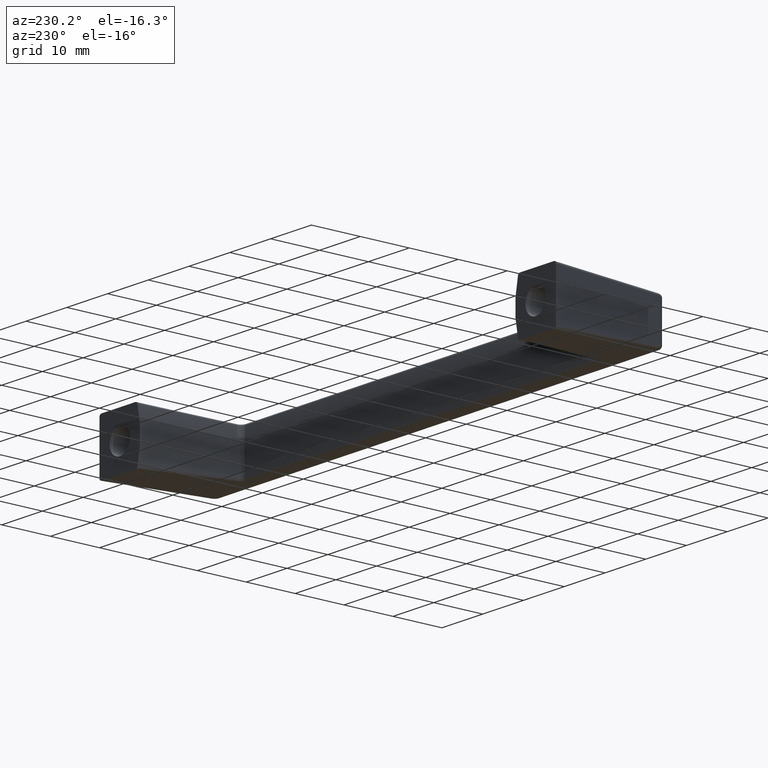
[diagram: clean part render]
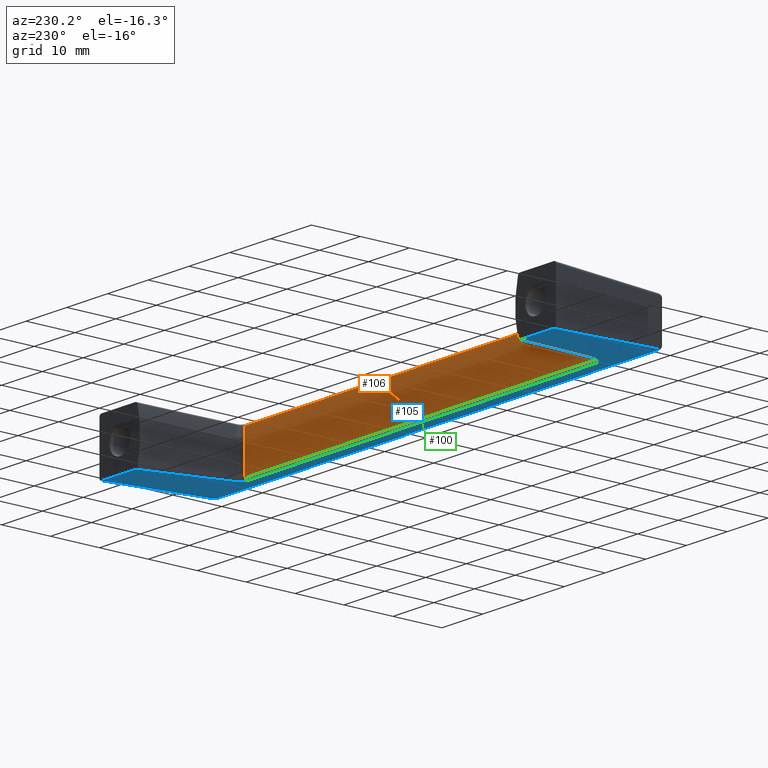
[diagram: same view with three faces highlighted in distinct colors, each labeled with its STEP entity id]
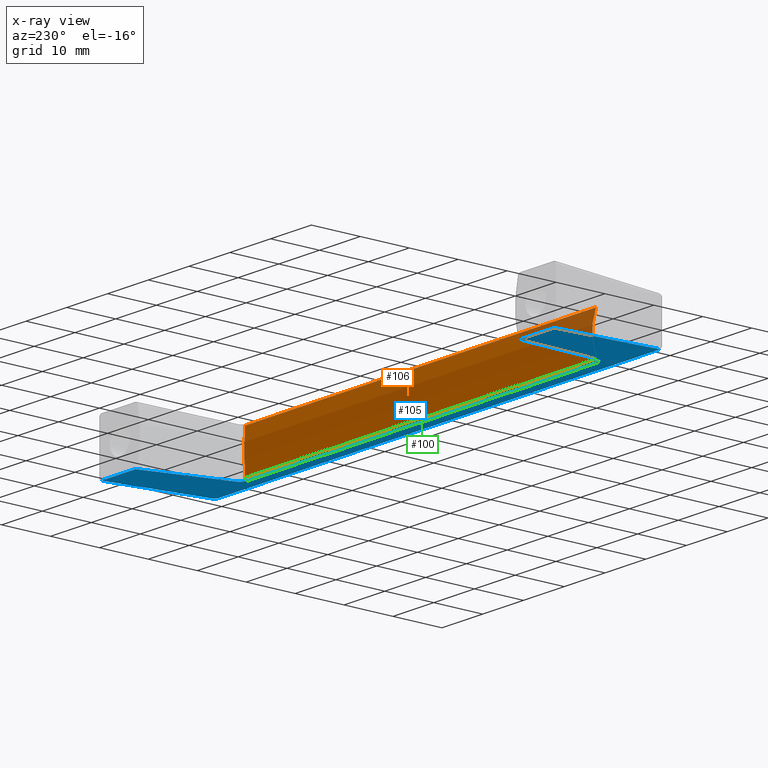
[diagram: x-ray of the same camera — body ghosted, the three highlighted faces saturated]
A machine part, auxiliary view with three faces highlighted in distinct colors.
The next image is the same camera in x-ray (body ghosted, the three faces saturated) — at least one of them is partly hidden behind the body in this view.
Their STEP definitions:

[orange] entity #106 — the highlighted cylindrical surface (partial cylindrical patch) has radius 20.0279 mm, axis along (-1, 0, -0).
#106=ADVANCED_FACE('',(#428),#427,.T.);
#427=CYLINDRICAL_SURFACE('',#857,2.00278571429E+001);
#428=FACE_OUTER_BOUND('',#858,.T.);
#854=CARTESIAN_POINT('',(-9.53223201208E+002,5.68434188608E-014,3.85281571429E+001));
#855=DIRECTION('',(-1.00000000000E+000,-0.00000000000E+000,-0.00000000000E+000));
#856=DIRECTION('',(-0.00000000000E+000,-0.00000000000E+000,1.00000000000E+000));
#857=AXIS2_PLACEMENT_3D('',#854,#855,#856);
#858=EDGE_LOOP('',(#1075,#1076,#1077,#1078));
#1075=ORIENTED_EDGE('',*,*,#1113,.T.);
#1076=ORIENTED_EDGE('',*,*,#1193,.T.);
#1077=ORIENTED_EDGE('',*,*,#1115,.T.);
#1078=ORIENTED_EDGE('',*,*,#1190,.T.);
#1113=EDGE_CURVE('',#1218,#1211,#1219,.T.);
#1115=EDGE_CURVE('',#1231,#1232,#1233,.T.);
#1190=EDGE_CURVE('',#1232,#1218,#1732,.T.);
#1193=EDGE_CURVE('',#1211,#1231,#1751,.T.);
#1211=VERTEX_POINT('',#1823);
#1218=VERTEX_POINT('',#1832);
#1219=(BOUNDED_CURVE() B_SPLINE_CURVE(3,(#1833,#1834,#1835,#1836,#1837,#1838,#1839,#1840,#1841,#1842),.UNSPECIFIED.,.F.,.F.) B_SPLINE_CURVE_WITH_KNOTS((4,2,2,2,4),(4.27086957905E-004,2.58483554688E-003,3.66370984137E-003,4.74258413586E-003,9.05808131382E-003),.UNSPECIFIED.) CURVE() GEOMETRIC_REPRESENTATION_ITEM() RATIONAL_B_SPLINE_CURVE((1.00000000000E+000,1.00000000000E+000,1.00000000000E+000,1.00000000000E+000,1.00000000000E+000,1.00000000000E+000,1.00000000000E+000,1.00000000000E+000,1.00000000000E+000,1.00000000000E+000)) REPRESENTATION_ITEM('') );
#1231=VERTEX_POINT('',#1851);
#1232=VERTEX_POINT('',#1852);
#1233=(BOUNDED_CURVE() B_SPLINE_CURVE(3,(#1853,#1854,#1855,#1856,#1857,#1858,#1859,#1860,#1861,#1862),.UNSPECIFIED.,.F.,.F.) B_SPLINE_CURVE_WITH_KNOTS((4,2,2,2,4),(4.27086957905E-004,2.58483554688E-003,3.66370984137E-003,4.74258413586E-003,9.05808131382E-003),.UNSPECIFIED.) CURVE() GEOMETRIC_REPRESENTATION_ITEM() RATIONAL_B_SPLINE_CURVE((1.00000000000E+000,1.00000000000E+000,1.00000000000E+000,1.00000000000E+000,1.00000000000E+000,1.00000000000E+000,1.00000000000E+000,1.00000000000E+000,1.00000000000E+000,1.00000000000E+000)) REPRESENTATION_ITEM('') );
#1732=LINE('',#2204,#2205);
#1751=LINE('',#2215,#2216);
#1823=CARTESIAN_POINT('',(-4.30464068542E+001,4.26052056911E+000,1.89587160110E+001));
#1832=CARTESIAN_POINT('',(-4.30464068542E+001,-4.26052056912E+000,1.89587160110E+001));
#1833=CARTESIAN_POINT('',(-4.30464068542E+001,-4.26052056912E+000,1.89587160110E+001));
#1834=CARTESIAN_POINT('',(-4.29077199323E+001,-3.56620773115E+000,1.88075551215E+001));
#1835=CARTESIAN_POINT('',(-4.28027005944E+001,-2.86319991053E+000,1.86930903945E+001));
#1836=CARTESIAN_POINT('',(-4.26968491528E+001,-1.79534203814E+000,1.85777188036E+001));
#1837=CARTESIAN_POINT('',(-4.26701964787E+001,-1.43716035297E+000,1.85486690455E+001));
#1838=CARTESIAN_POINT('',(-4.26345858571E+001,-7.16227185460E-001,1.85098556882E+001));
#1839=CARTESIAN_POINT('',(-4.26256597947E+001,-3.52074328459E-001,1.85001268417E+001));
#1840=CARTESIAN_POINT('',(-4.26264649561E+001,1.45687779295E+000,1.85010044171E+001));
#1841=CARTESIAN_POINT('',(-4.27693018029E+001,2.87324055771E+000,1.86566872006E+001));
#1842=CARTESIAN_POINT('',(-4.30464068542E+001,4.26052056911E+000,1.89587160110E+001));
#1851=CARTESIAN_POINT('',(4.30464068542E+001,4.26052056912E+000,1.89587160110E+001));
#1852=CARTESIAN_POINT('',(4.30464068542E+001,-4.26052056911E+000,1.89587160110E+001));
#1853=CARTESIAN_POINT('',(4.30464068542E+001,4.26052056912E+000,1.89587160110E+001));
#1854=CARTESIAN_POINT('',(4.29077199323E+001,3.56620773115E+000,1.88075551215E+001));
#1855=CARTESIAN_POINT('',(4.28027005944E+001,2.86319991053E+000,1.86930903945E+001));
#1856=CARTESIAN_POINT('',(4.26968491528E+001,1.79534203814E+000,1.85777188036E+001));
#1857=CARTESIAN_POINT('',(4.26701964787E+001,1.43716035297E+000,1.85486690455E+001));
#1858=CARTESIAN_POINT('',(4.26345858571E+001,7.16227185460E-001,1.85098556882E+001));
#1859=CARTESIAN_POINT('',(4.26256597947E+001,3.52074328460E-001,1.85001268417E+001));
#1860=CARTESIAN_POINT('',(4.26264649561E+001,-1.45687779295E+000,1.85010044171E+001));
#1861=CARTESIAN_POINT('',(4.27693018029E+001,-2.87324055771E+000,1.86566872006E+001));
#1862=CARTESIAN_POINT('',(4.30464068542E+001,-4.26052056911E+000,1.89587160110E+001));
#2204=CARTESIAN_POINT('',(4.30464068542E+001,-4.26052056911E+000,1.89587160110E+001));
#2205=VECTOR('',#2206,8.60928137083E+001);
#2206=DIRECTION('',(-1.00000000000E+000,0.00000000000E+000,0.00000000000E+000));
#2215=CARTESIAN_POINT('',(-4.30464068542E+001,4.26052056911E+000,1.89587160110E+001));
#2216=VECTOR('',#2217,8.60928137083E+001);
#2217=DIRECTION('',(1.00000000000E+000,0.00000000000E+000,0.00000000000E+000));

[blue] entity #105 — the highlighted planar face has unit normal (0, -0.0434, -0.9991).
#105=ADVANCED_FACE('',(#418),#417,.T.);
#417=PLANE('',#852);
#418=FACE_OUTER_BOUND('',#853,.T.);
#849=CARTESIAN_POINT('',(-6.55002717409E+001,-4.42306583607E+000,2.47742159205E+001));
#850=DIRECTION('',(0.00000000000E+000,-9.99056518227E-001,4.34289464349E-002));
#851=DIRECTION('',(0.00000000000E+000,-4.34289464349E-002,-9.99056518227E-001));
#852=AXIS2_PLACEMENT_3D('',#849,#850,#851);
#853=EDGE_LOOP('',(#1063,#1064,#1065,#1066,#1067,#1068,#1069,#1070,#1071,#1072,#1073,#1074));
#1063=ORIENTED_EDGE('',*,*,#1196,.T.);
#1064=ORIENTED_EDGE('',*,*,#1123,.T.);
#1065=ORIENTED_EDGE('',*,*,#1148,.F.);
#1066=ORIENTED_EDGE('',*,*,#1171,.T.);
#1067=ORIENTED_EDGE('',*,*,#1173,.T.);
#1068=ORIENTED_EDGE('',*,*,#1197,.T.);
#1069=ORIENTED_EDGE('',*,*,#1176,.T.);
#1070=ORIENTED_EDGE('',*,*,#1179,.T.);
#1071=ORIENTED_EDGE('',*,*,#1157,.F.);
#1072=ORIENTED_EDGE('',*,*,#1169,.T.);
#1073=ORIENTED_EDGE('',*,*,#1167,.T.);
#1074=ORIENTED_EDGE('',*,*,#1192,.T.);
#1123=EDGE_CURVE('',#1286,#1279,#1287,.T.);
#1148=EDGE_CURVE('',#1448,#1279,#1455,.T.);
#1157=EDGE_CURVE('',#1510,#1517,#1518,.T.);
#1167=EDGE_CURVE('',#1570,#1577,#1584,.T.);
#1169=EDGE_CURVE('',#1510,#1570,#1596,.T.);
#1171=EDGE_CURVE('',#1448,#1602,#1609,.T.);
#1173=EDGE_CURVE('',#1602,#1616,#1623,.T.);
#1176=EDGE_CURVE('',#1642,#1635,#1643,.T.);
#1179=EDGE_CURVE('',#1635,#1517,#1662,.T.);
#1192=EDGE_CURVE('',#1577,#1738,#1745,.T.);
#1196=EDGE_CURVE('',#1738,#1286,#1769,.T.);
#1197=EDGE_CURVE('',#1616,#1642,#1775,.T.);
#1279=VERTEX_POINT('',#1902);
#1286=VERTEX_POINT('',#1909);
#1287=(BOUNDED_CURVE() B_SPLINE_CURVE(2,(#1910,#1911,#1912),.UNSPECIFIED.,.F.,.F.) B_SPLINE_CURVE_WITH_KNOTS((3,3),(-1.35941033584E+000,-1.31769366303E+000),.UNSPECIFIED.) CURVE() GEOMETRIC_REPRESENTATION_ITEM() RATIONAL_B_SPLINE_CURVE((1.00000000000E+000,9.99782472788E-001,1.00000000000E+000)) REPRESENTATION_ITEM('') );
#1448=VERTEX_POINT('',#2023);
#1455=LINE('',#2027,#2028);
#1510=VERTEX_POINT('',#2060);
#1517=VERTEX_POINT('',#2067);
#1518=LINE('',#2068,#2069);
#1570=VERTEX_POINT('',#2098);
#1577=VERTEX_POINT('',#2103);
#1584=(BOUNDED_CURVE() B_SPLINE_CURVE(3,(#2108,#2109,#2110,#2111,#2112,#2113,#2114,#2115,#2116,#2117),.UNSPECIFIED.,.F.,.F.) B_SPLINE_CURVE_WITH_KNOTS((4,2,2,2,4),(0.00000000000E+000,5.30782279745E-004,1.06156455949E-003,1.59234683924E-003,2.12312911898E-003),.UNSPECIFIED.) CURVE() GEOMETRIC_REPRESENTATION_ITEM() RATIONAL_B_SPLINE_CURVE((1.00000000000E+000,1.00000000000E+000,1.00000000000E+000,1.00000000000E+000,1.00000000000E+000,1.00000000000E+000,1.00000000000E+000,1.00000000000E+000,1.00000000000E+000,1.00000000000E+000)) REPRESENTATION_ITEM('') );
#1596=(BOUNDED_CURVE() B_SPLINE_CURVE(2,(#2121,#2122,#2123),.UNSPECIFIED.,.F.,.F.) B_SPLINE_CURVE_WITH_KNOTS((3,3),(1.31769366303E+000,1.35941033584E+000),.UNSPECIFIED.) CURVE() GEOMETRIC_REPRESENTATION_ITEM() RATIONAL_B_SPLINE_CURVE((1.00000000000E+000,9.99782472788E-001,1.00000000000E+000)) REPRESENTATION_ITEM('') );
#1602=VERTEX_POINT('',#2124);
#1609=LINE('',#2129,#2130);
#1616=VERTEX_POINT('',#2133);
#1623=(BOUNDED_CURVE() B_SPLINE_CURVE(2,(#2138,#2139,#2140),.UNSPECIFIED.,.F.,.F.) B_SPLINE_CURVE_WITH_KNOTS((3,3),(1.61422891344E+000,3.14159265359E+000),.UNSPECIFIED.) CURVE() GEOMETRIC_REPRESENTATION_ITEM() RATIONAL_B_SPLINE_CURVE((1.00000000000E+000,7.22294584225E-001,1.00000000000E+000)) REPRESENTATION_ITEM('') );
#1635=VERTEX_POINT('',#2144);
#1642=VERTEX_POINT('',#2149);
#1643=(BOUNDED_CURVE() B_SPLINE_CURVE(2,(#2150,#2151,#2152),.UNSPECIFIED.,.F.,.F.) B_SPLINE_CURVE_WITH_KNOTS((3,3),(-3.14159265359E+000,-1.61422891344E+000),.UNSPECIFIED.) CURVE() GEOMETRIC_REPRESENTATION_ITEM() RATIONAL_B_SPLINE_CURVE((1.00000000000E+000,7.22294584225E-001,1.00000000000E+000)) REPRESENTATION_ITEM('') );
#1662=LINE('',#2161,#2162);
#1738=VERTEX_POINT('',#2207);
#1745=LINE('',#2212,#2213);
#1769=(BOUNDED_CURVE() B_SPLINE_CURVE(3,(#2225,#2226,#2227,#2228,#2229,#2230,#2231,#2232),.UNSPECIFIED.,.F.,.F.) B_SPLINE_CURVE_WITH_KNOTS((4,2,2,4),(0.00000000000E+000,1.06085605758E-003,1.59128408636E-003,2.12171211515E-003),.UNSPECIFIED.) CURVE() GEOMETRIC_REPRESENTATION_ITEM() RATIONAL_B_SPLINE_CURVE((1.00000000000E+000,1.00000000000E+000,1.00000000000E+000,1.00000000000E+000,1.00000000000E+000,1.00000000000E+000,1.00000000000E+000,1.00000000000E+000)) REPRESENTATION_ITEM('') );
#1775=LINE('',#2233,#2234);
#1902=CARTESIAN_POINT('',(4.71642084599E+001,-5.50000000000E+000,0.00000000000E+000));
#1909=CARTESIAN_POINT('',(4.45092286707E+001,-4.70830937107E+000,1.82123617583E+001));
#1910=CARTESIAN_POINT('',(4.45092286707E+001,-4.70830937107E+000,1.82123617583E+001));
#1911=CARTESIAN_POINT('',(4.58346151789E+001,-5.10615860247E+000,9.06008198798E+000));
#1912=CARTESIAN_POINT('',(4.71642084599E+001,-5.50000000000E+000,4.37527370249E-014));
#2023=CARTESIAN_POINT('',(5.55002717409E+001,-5.50000000000E+000,0.00000000000E+000));
#2027=CARTESIAN_POINT('',(5.55002717409E+001,-5.50000000000E+000,0.00000000000E+000));
#2028=VECTOR('',#2029,8.33606328100E+000);
#2029=DIRECTION('',(-1.00000000000E+000,0.00000000000E+000,0.00000000000E+000));
#2060=CARTESIAN_POINT('',(-4.71642084599E+001,-5.50000000000E+000,0.00000000000E+000));
#2067=CARTESIAN_POINT('',(-5.55002717409E+001,-5.50000000000E+000,0.00000000000E+000));
#2068=CARTESIAN_POINT('',(-4.71642084599E+001,-5.50000000000E+000,0.00000000000E+000));
#2069=VECTOR('',#2070,8.33606328100E+000);
#2070=DIRECTION('',(-1.00000000000E+000,0.00000000000E+000,0.00000000000E+000));
#2098=CARTESIAN_POINT('',(-4.45092286707E+001,-4.70830937107E+000,1.82123617583E+001));
#2103=CARTESIAN_POINT('',(-4.30464068542E+001,-4.65368396505E+000,1.94689860244E+001));
#2108=CARTESIAN_POINT('',(-4.45092286707E+001,-4.70830937107E+000,1.82123617583E+001));
#2109=CARTESIAN_POINT('',(-4.44838775605E+001,-4.70069957602E+000,1.83874204684E+001));
#2110=CARTESIAN_POINT('',(-4.44281250312E+001,-4.69341394756E+000,1.85550219233E+001));
#2111=CARTESIAN_POINT('',(-4.42594381700E+001,-4.68001479099E+000,1.88632613766E+001));
#2112=CARTESIAN_POINT('',(-4.41480527398E+001,-4.67403989657E+000,1.90007101914E+001));
#2113=CARTESIAN_POINT('',(-4.38802668979E+001,-4.66408055986E+000,1.92298186795E+001));
#2114=CARTESIAN_POINT('',(-4.37281293988E+001,-4.66023496938E+000,1.93182841513E+001));
#2115=CARTESIAN_POINT('',(-4.33961860939E+001,-4.65498749834E+000,1.94389990334E+001));
#2116=CARTESIAN_POINT('',(-4.32234040808E+001,-4.65368396505E+000,1.94689860244E+001));
#2117=CARTESIAN_POINT('',(-4.30464068542E+001,-4.65368396505E+000,1.94689860244E+001));
#2121=CARTESIAN_POINT('',(-4.71642084599E+001,-5.50000000000E+000,3.04366866260E-014));
#2122=CARTESIAN_POINT('',(-4.58346151789E+001,-5.10615860247E+000,9.06008198798E+000));
#2123=CARTESIAN_POINT('',(-4.45092286707E+001,-4.70830937107E+000,1.82123617583E+001));
#2124=CARTESIAN_POINT('',(5.45422533165E+001,-4.54176021203E+000,2.20437239396E+001));
#2129=CARTESIAN_POINT('',(5.55002717409E+001,-5.50000000000E+000,3.55271367880E-015));
#2130=VECTOR('',#2131,2.20853296991E+001);
#2131=DIRECTION('',(-4.33780449480E-002,4.33880680537E-002,9.98116135912E-001));
#2133=CARTESIAN_POINT('',(5.40427248397E+001,-4.52096894188E+000,2.25220144732E+001));
#2138=CARTESIAN_POINT('',(5.45422533165E+001,-4.54176021203E+000,2.20437239396E+001));
#2139=CARTESIAN_POINT('',(5.45214668493E+001,-4.52096894188E+000,2.25220144732E+001));
#2140=CARTESIAN_POINT('',(5.40427248397E+001,-4.52096894188E+000,2.25220144732E+001));
#2144=CARTESIAN_POINT('',(-5.45422533165E+001,-4.54176021203E+000,2.20437239396E+001));
#2149=CARTESIAN_POINT('',(-5.40427248397E+001,-4.52096894188E+000,2.25220144732E+001));
#2150=CARTESIAN_POINT('',(-5.40427248397E+001,-4.52096894188E+000,2.25220144732E+001));
#2151=CARTESIAN_POINT('',(-5.45214668493E+001,-4.52096894188E+000,2.25220144732E+001));
#2152=CARTESIAN_POINT('',(-5.45422533165E+001,-4.54176021203E+000,2.20437239396E+001));
#2161=CARTESIAN_POINT('',(-5.45422533165E+001,-4.54176021203E+000,2.20437239396E+001));
#2162=VECTOR('',#2163,2.20853296991E+001);
#2163=DIRECTION('',(-4.33780449480E-002,-4.33880680537E-002,-9.98116135912E-001));
#2207=CARTESIAN_POINT('',(4.30464068542E+001,-4.65368396505E+000,1.94689860244E+001));
#2212=CARTESIAN_POINT('',(-4.30464068542E+001,-4.65368396505E+000,1.94689860244E+001));
#2213=VECTOR('',#2214,8.60928137083E+001);
#2214=DIRECTION('',(1.00000000000E+000,0.00000000000E+000,0.00000000000E+000));
#2225=CARTESIAN_POINT('',(4.30464068542E+001,-4.65368396505E+000,1.94689860244E+001));
#2226=CARTESIAN_POINT('',(4.34003497959E+001,-4.65368396505E+000,1.94689860244E+001));
#2227=CARTESIAN_POINT('',(4.37474646520E+001,-4.65913238074E+000,1.93436485328E+001));
#2228=CARTESIAN_POINT('',(4.41482542281E+001,-4.67405194016E+000,1.90004331360E+001));
#2229=CARTESIAN_POINT('',(4.42594556351E+001,-4.68001026039E+000,1.88633656003E+001));
#2230=CARTESIAN_POINT('',(4.44286269352E+001,-4.69345975094E+000,1.85539682442E+001));
#2231=CARTESIAN_POINT('',(4.44838853441E+001,-4.70070191247E+000,1.83873667199E+001));
#2232=CARTESIAN_POINT('',(4.45092286707E+001,-4.70830937107E+000,1.82123617583E+001));
#2233=CARTESIAN_POINT('',(5.40427248397E+001,-4.52096894188E+000,2.25220144732E+001));
#2234=VECTOR('',#2235,1.08085449679E+002);
#2235=DIRECTION('',(-1.00000000000E+000,0.00000000000E+000,0.00000000000E+000));

[green] entity #100 — the highlighted cylindrical surface (edge-blend (fillet) strip) has radius 0.5 mm, axis along (-1, 0, -0).
#100=ADVANCED_FACE('',(#368),#367,.T.);
#367=CYLINDRICAL_SURFACE('',#813,5.00000000000E-001);
#368=FACE_OUTER_BOUND('',#814,.T.);
#810=CARTESIAN_POINT('',(-9.53223201208E+002,-4.15415570594E+000,1.94472715512E+001));
#811=DIRECTION('',(-1.00000000000E+000,-0.00000000000E+000,-0.00000000000E+000));
#812=DIRECTION('',(-0.00000000000E+000,-0.00000000000E+000,1.00000000000E+000));
#813=AXIS2_PLACEMENT_3D('',#810,#811,#812);
#814=EDGE_LOOP('',(#1043,#1044,#1045,#1046));
#1043=ORIENTED_EDGE('',*,*,#1166,.T.);
#1044=ORIENTED_EDGE('',*,*,#1190,.F.);
#1045=ORIENTED_EDGE('',*,*,#1191,.F.);
#1046=ORIENTED_EDGE('',*,*,#1192,.F.);
#1166=EDGE_CURVE('',#1577,#1218,#1578,.T.);
#1190=EDGE_CURVE('',#1232,#1218,#1732,.T.);
#1191=EDGE_CURVE('',#1738,#1232,#1739,.T.);
#1192=EDGE_CURVE('',#1577,#1738,#1745,.T.);
#1218=VERTEX_POINT('',#1832);
#1232=VERTEX_POINT('',#1852);
#1577=VERTEX_POINT('',#2103);
#1578=CIRCLE('',#2107,5.00000000000E-001);
#1732=LINE('',#2204,#2205);
#1738=VERTEX_POINT('',#2207);
#1739=CIRCLE('',#2211,5.00000000000E-001);
#1745=LINE('',#2212,#2213);
#1832=CARTESIAN_POINT('',(-4.30464068542E+001,-4.26052056912E+000,1.89587160110E+001));
#1852=CARTESIAN_POINT('',(4.30464068542E+001,-4.26052056911E+000,1.89587160110E+001));
#2103=CARTESIAN_POINT('',(-4.30464068542E+001,-4.65368396505E+000,1.94689860244E+001));
#2104=CARTESIAN_POINT('',(-4.30464068542E+001,-4.15415570594E+000,1.94472715512E+001));
#2105=DIRECTION('',(1.00000000000E+000,-3.05805098040E-015,-7.03486042338E-014));
#2106=DIRECTION('',(7.03486042338E-014,-0.00000000000E+000,1.00000000000E+000));
#2107=AXIS2_PLACEMENT_3D('',#2104,#2105,#2106);
#2204=CARTESIAN_POINT('',(4.30464068542E+001,-4.26052056911E+000,1.89587160110E+001));
#2205=VECTOR('',#2206,8.60928137083E+001);
#2206=DIRECTION('',(-1.00000000000E+000,0.00000000000E+000,0.00000000000E+000));
#2207=CARTESIAN_POINT('',(4.30464068542E+001,-4.65368396505E+000,1.94689860244E+001));
#2208=CARTESIAN_POINT('',(4.30464068542E+001,-4.15415570594E+000,1.94472715512E+001));
#2209=DIRECTION('',(1.00000000000E+000,0.00000000000E+000,0.00000000000E+000));
#2210=DIRECTION('',(-0.00000000000E+000,-0.00000000000E+000,1.00000000000E+000));
#2211=AXIS2_PLACEMENT_3D('',#2208,#2209,#2210);
#2212=CARTESIAN_POINT('',(-4.30464068542E+001,-4.65368396505E+000,1.94689860244E+001));
#2213=VECTOR('',#2214,8.60928137083E+001);
#2214=DIRECTION('',(1.00000000000E+000,0.00000000000E+000,0.00000000000E+000));